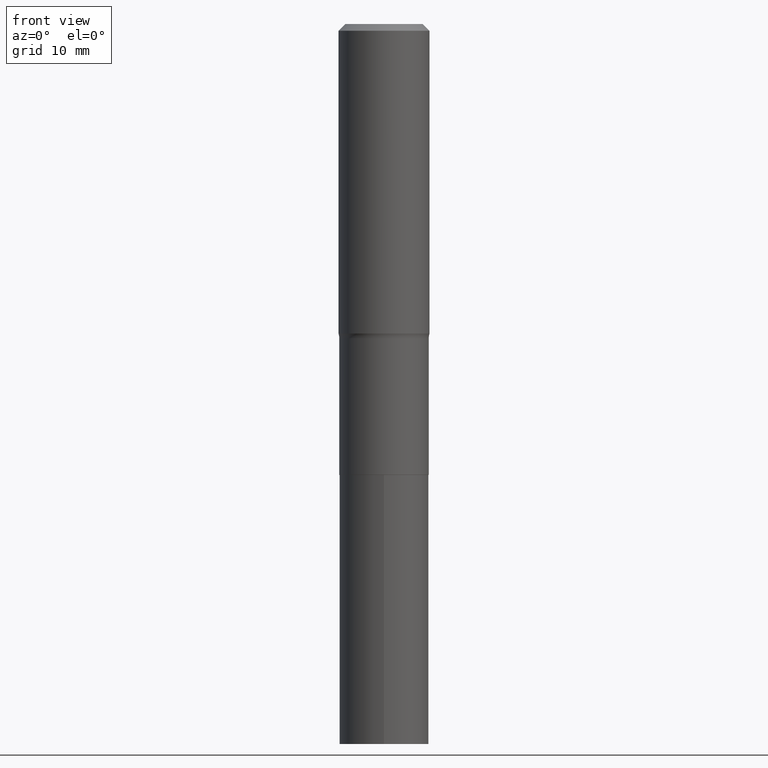
[diagram: clean part render]
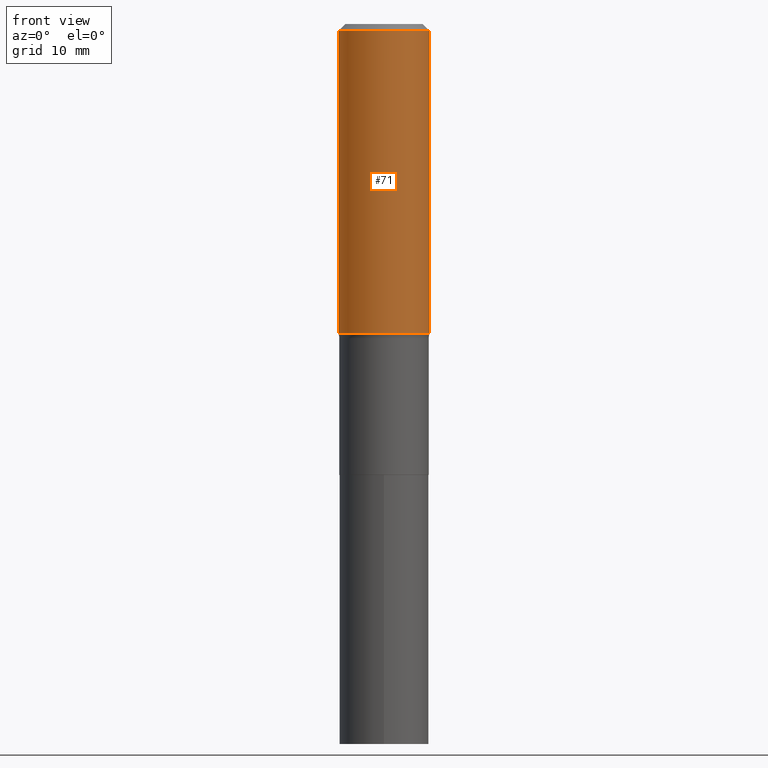
[diagram: same view with one face highlighted and labeled with its STEP entity id]
A machine part, front view. The second image highlights one B-rep face of the part: STEP entity #71.
In plain terms, the highlighted cylindrical surface (partial cylindrical patch) has radius 5.9995 mm, axis along (-0, 0, 1).
Its self-contained STEP definition (entity closure, byte-faithful):
#22 = CARTESIAN_POINT ( 'NONE',  ( 0.2362000000000001043, -1.649375784469496920E-15, 1.151752954443000508E-29 ) ) ;
#50 = CARTESIAN_POINT ( 'NONE',  ( -0.2361999999999999933, -1.190397463391202039E-15, -0.03543000000000024602 ) ) ;
#51 = CARTESIAN_POINT ( 'NONE',  ( 8.664295980313998742E-31, -1.237031838352135065E-16, -0.03543000000000024602 ) ) ;
#57 = VECTOR ( 'NONE', #281, 39.37007874015748143 ) ;
#59 = DIRECTION ( 'NONE',  ( -2.445468806185136597E-29, 3.491481338843145583E-15, 1.000000000000000000 ) ) ;
#71 = ADVANCED_FACE ( 'NONE', ( #202 ), #317, .T. ) ;
#83 = VECTOR ( 'NONE', #174, 39.37007874015748143 ) ;
#86 = CIRCLE ( 'NONE', #338, 0.2361999999999999933 ) ;
#101 = DIRECTION ( 'NONE',  ( -2.445468806185136597E-29, 3.491481338843145583E-15, 1.000000000000000000 ) ) ;
#104 = DIRECTION ( 'NONE',  ( 1.000000000000000000, -6.982962677686266711E-15, 4.876176775795935793E-29 ) ) ;
#108 = ORIENTED_EDGE ( 'NONE', *, *, #378, .T. ) ;
#130 = CARTESIAN_POINT ( 'NONE',  ( -0.2362000000000002153, -3.935393684812547286E-15, -1.607826329823067724 ) ) ;
#174 = DIRECTION ( 'NONE',  ( -2.445468806185136877E-29, 3.491481338843145188E-15, 1.000000000000000000 ) ) ;
#193 = DIRECTION ( 'NONE',  ( -2.445468806185136597E-29, 3.491481338843145583E-15, 1.000000000000000000 ) ) ;
#202 = FACE_OUTER_BOUND ( 'NONE', #315, .T. ) ;
#206 = VERTEX_POINT ( 'NONE', #383 ) ;
#210 = LINE ( 'NONE', #22, #83 ) ;
#215 = EDGE_CURVE ( 'NONE', #206, #455, #210, .T. ) ;
#260 = VERTEX_POINT ( 'NONE', #50 ) ;
#266 = ORIENTED_EDGE ( 'NONE', *, *, #215, .T. ) ;
#268 = DIRECTION ( 'NONE',  ( 1.000000000000000000, -6.982962677686266711E-15, 0.000000000000000000 ) ) ;
#281 = DIRECTION ( 'NONE',  ( -2.445468806185136877E-29, 3.491481338843145188E-15, 1.000000000000000000 ) ) ;
#306 = CARTESIAN_POINT ( 'NONE',  ( 0.000000000000000000, 0.000000000000000000, 0.000000000000000000 ) ) ;
#307 = DIRECTION ( 'NONE',  ( 1.000000000000000000, -6.982962677686266711E-15, 0.000000000000000000 ) ) ;
#315 = EDGE_LOOP ( 'NONE', ( #371, #108, #266, #344 ) ) ;
#317 = CYLINDRICAL_SURFACE ( 'NONE', #395, 0.2362000000000001043 ) ;
#338 = AXIS2_PLACEMENT_3D ( 'NONE', #51, #59, #307 ) ;
#343 = CARTESIAN_POINT ( 'NONE',  ( 0.2361999999999999933, -1.773078968304709711E-15, -0.03543000000000024602 ) ) ;
#344 = ORIENTED_EDGE ( 'NONE', *, *, #438, .F. ) ;
#369 = CARTESIAN_POINT ( 'NONE',  ( 3.931889135345447533E-29, -5.613695626677905258E-15, -1.607826329823067724 ) ) ;
#371 = ORIENTED_EDGE ( 'NONE', *, *, #434, .F. ) ;
#375 = LINE ( 'NONE', #444, #57 ) ;
#378 = EDGE_CURVE ( 'NONE', #387, #206, #396, .T. ) ;
#383 = CARTESIAN_POINT ( 'NONE',  ( 0.2362000000000002153, -7.263071411147402572E-15, -1.607826329823067724 ) ) ;
#387 = VERTEX_POINT ( 'NONE', #130 ) ;
#390 = AXIS2_PLACEMENT_3D ( 'NONE', #369, #193, #268 ) ;
#395 = AXIS2_PLACEMENT_3D ( 'NONE', #306, #101, #104 ) ;
#396 = CIRCLE ( 'NONE', #390, 0.2362000000000002153 ) ;
#434 = EDGE_CURVE ( 'NONE', #387, #260, #375, .T. ) ;
#438 = EDGE_CURVE ( 'NONE', #260, #455, #86, .T. ) ;
#444 = CARTESIAN_POINT ( 'NONE',  ( -0.2362000000000001043, 1.678301941865357380E-15, -1.161852468318209317E-29 ) ) ;
#455 = VERTEX_POINT ( 'NONE', #343 ) ;